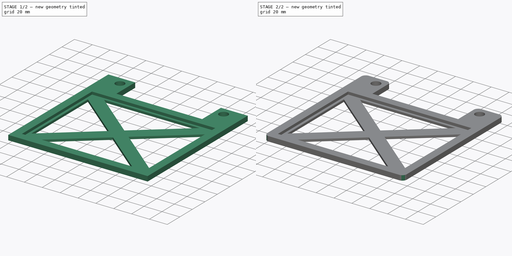
[diagram: build sequence overview — one tinted view per stage of 2, left to right]
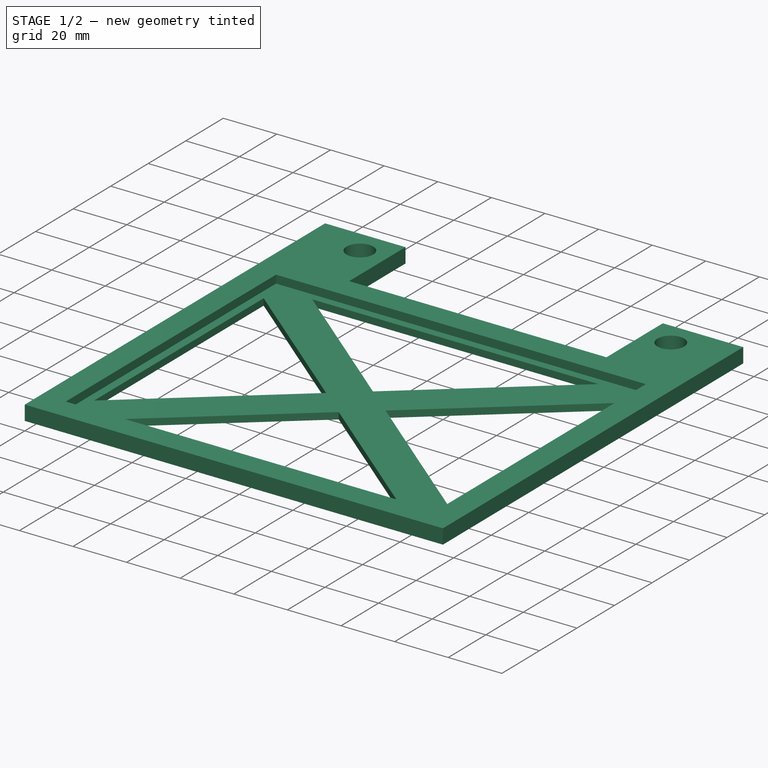
[diagram: stage 1 of 2 — iso view after this stage's code; geometry added in this stage tinted green]
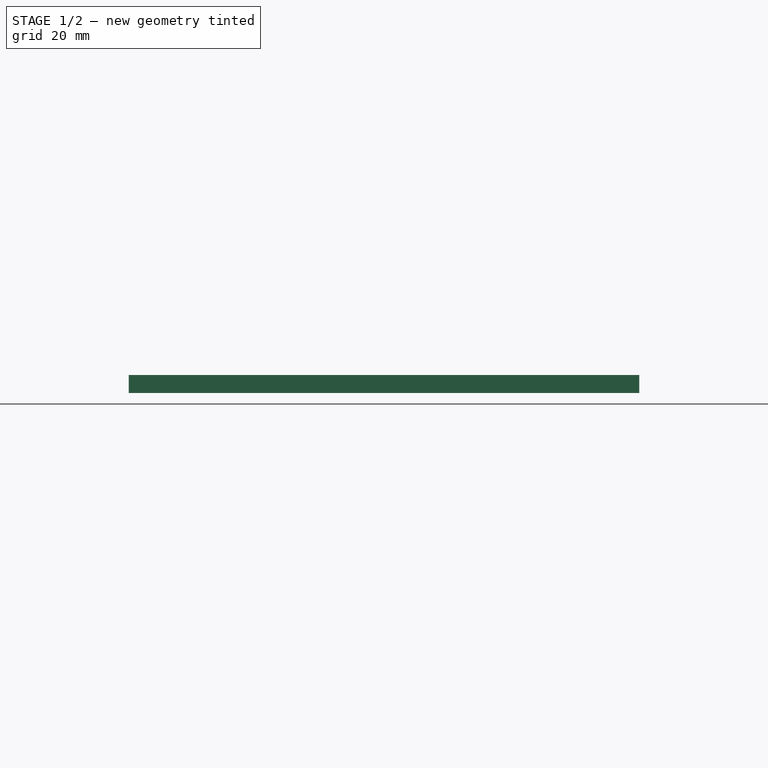
[diagram: stage 1 of 2 — front view after this stage's code; geometry added in this stage tinted green]
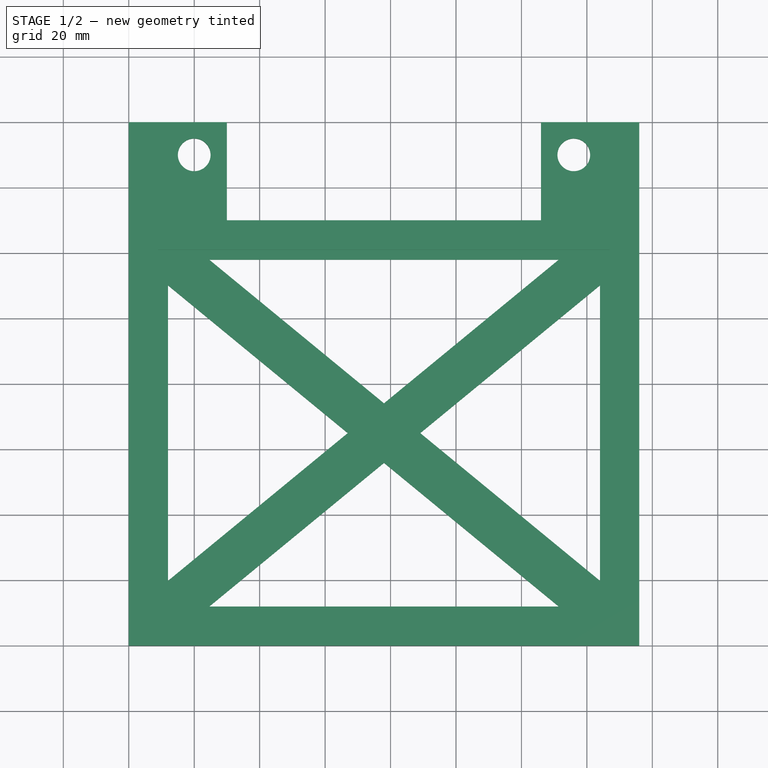
[diagram: stage 1 of 2 — top view after this stage's code; geometry added in this stage tinted green]
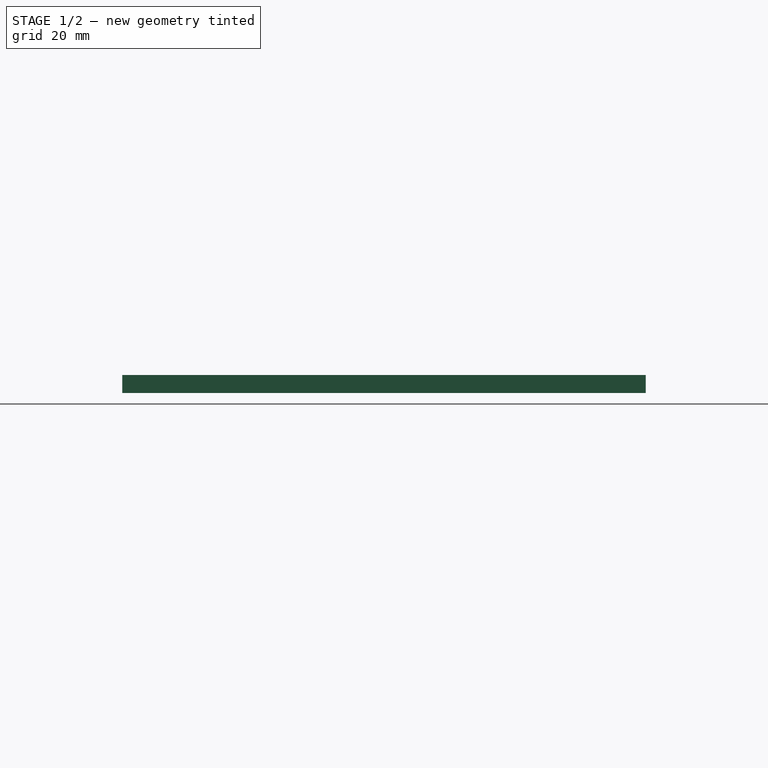
[diagram: stage 1 of 2 — right view after this stage's code; geometry added in this stage tinted green]
FCSTD DOCUMENT  (FreeCAD 0.19R24291 (Git))
Label: Indoor_unit_solar
License: All rights reserved
LicenseURL: http://en.wikipedia.org/wiki/All_rights_reserved
objects: Sketcher::SketchObject×2, PartDesign::Pad×1, PartDesign::Pocket×1, PartDesign::Fillet×1, PartDesign::Body×1
note: 9 computed .brp shape members not serialized (recipe doc carries the construction recipe); baked Part::Feature solids carry a one-line shape summary decoded from their .brp

FEATURE [Sketcher::SketchObject] Sketch
  FullyConstrained = true
  MapMode = 5
  Support = -> [XY_Plane]
  sketch-geometry (47):
    g0: LineSegment StartX=0 StartY=0 StartZ=0 EndX=0 EndY=160 EndZ=0
    g1: LineSegment StartX=30 StartY=130 StartZ=0 EndX=126 EndY=130 EndZ=0
    g2: LineSegment StartX=156 StartY=160 StartZ=0 EndX=156 EndY=0 EndZ=0
    g3: LineSegment StartX=156 StartY=0 StartZ=0 EndX=0 EndY=0 EndZ=0
    g4: LineSegment StartX=12 StartY=110.137 StartZ=0 EndX=12 EndY=19.863 EndZ=0
    g5: LineSegment StartX=24.6 StartY=12 StartZ=0 EndX=131.4 EndY=12 EndZ=0
    g6: LineSegment StartX=144 StartY=19.863 StartZ=0 EndX=144 EndY=110.137 EndZ=0
    g7: LineSegment StartX=24.6 StartY=118 StartZ=0 EndX=131.4 EndY=118 EndZ=0
    g8: LineSegment StartX=24.6 StartY=118 StartZ=0 EndX=78 EndY=74.1096 EndZ=0
    g9: LineSegment StartX=78 StartY=74.1096 StartZ=0 EndX=131.4 EndY=118 EndZ=0
    g10: LineSegment StartX=144 StartY=110.137 StartZ=0 EndX=89.0833 EndY=65 EndZ=0
    g11: LineSegment StartX=89.0833 StartY=65 StartZ=0 EndX=144 EndY=19.863 EndZ=0
    g12: LineSegment StartX=12 StartY=110.137 StartZ=0 EndX=66.9167 EndY=65 EndZ=0
    g13: LineSegment StartX=12 StartY=19.863 StartZ=0 EndX=66.9167 EndY=65 EndZ=0
    g14: LineSegment StartX=24.6 StartY=12 StartZ=0 EndX=78 EndY=55.8904 EndZ=0
    g15: LineSegment StartX=78 StartY=55.8904 StartZ=0 EndX=131.4 EndY=12 EndZ=0
    g16: LineSegment StartX=0 StartY=160 StartZ=0 EndX=30 EndY=160 EndZ=0
    g17: LineSegment StartX=30 StartY=160 StartZ=0 EndX=30 EndY=130 EndZ=0
    g18: LineSegment StartX=126 StartY=130 StartZ=0 EndX=126 EndY=160 EndZ=0
    g19: LineSegment StartX=126 StartY=160 StartZ=0 EndX=156 EndY=160 EndZ=0
    g20: LineSegment StartX=0 StartY=0 StartZ=0 EndX=156 EndY=0 EndZ=0
    g21: LineSegment StartX=156 StartY=0 StartZ=0 EndX=156 EndY=160 EndZ=0
    g22: LineSegment StartX=156 StartY=160 StartZ=0 EndX=0 EndY=160 EndZ=0
    g23: LineSegment StartX=0 StartY=160 StartZ=0 EndX=0 EndY=0 EndZ=0
    g24: LineSegment StartX=0 StartY=0 StartZ=0 EndX=156 EndY=0 EndZ=0
    g25: LineSegment StartX=156 StartY=0 StartZ=0 EndX=156 EndY=130 EndZ=0
    g26: LineSegment StartX=156 StartY=130 StartZ=0 EndX=0 EndY=130 EndZ=0
    g27: LineSegment StartX=0 StartY=130 StartZ=0 EndX=0 EndY=0 EndZ=0
    g28: LineSegment StartX=0 StartY=10 StartZ=0 EndX=146 EndY=130 EndZ=0
    g29: LineSegment StartX=10 StartY=0 StartZ=0 EndX=156 EndY=120 EndZ=0
    g30: LineSegment StartX=10 StartY=130 StartZ=0 EndX=156 EndY=10 EndZ=0
    g31: LineSegment StartX=0 StartY=120 StartZ=0 EndX=146 EndY=1.42e-14 EndZ=0
    g32: LineSegment StartX=0 StartY=0 StartZ=0 EndX=0 EndY=10 EndZ=0
    g33: LineSegment StartX=0 StartY=0 StartZ=0 EndX=10 EndY=0 EndZ=0
    g34: LineSegment StartX=146 StartY=0 StartZ=0 EndX=156 EndY=0 EndZ=0
    g35: LineSegment StartX=156 StartY=10 StartZ=0 EndX=156 EndY=0 EndZ=0
    g36: LineSegment StartX=156 StartY=130 StartZ=0 EndX=156 EndY=120 EndZ=0
    g37: LineSegment StartX=146 StartY=130 StartZ=0 EndX=156 EndY=130 EndZ=0
    g38: LineSegment StartX=10 StartY=130 StartZ=0 EndX=0 EndY=130 EndZ=0
    g39: LineSegment StartX=0 StartY=130 StartZ=0 EndX=0 EndY=120 EndZ=0
    g40: LineSegment StartX=12 StartY=118 StartZ=0 EndX=144 EndY=118 EndZ=0
    g41: LineSegment StartX=144 StartY=118 StartZ=0 EndX=144 EndY=12 EndZ=0
    g42: LineSegment StartX=144 StartY=12 StartZ=0 EndX=12 EndY=12 EndZ=0
    g43: LineSegment StartX=12 StartY=12 StartZ=0 EndX=12 EndY=118 EndZ=0
    g44: Circle CenterX=20 CenterY=150 CenterZ=0 NormalX=0 NormalY=0 NormalZ=1 AngleXU=0 Radius=5
    g45: Circle CenterX=136 CenterY=150 CenterZ=0 NormalX=0 NormalY=0 NormalZ=1 AngleXU=0 Radius=5
    g46: LineSegment StartX=20 StartY=150 StartZ=0 EndX=136 EndY=150 EndZ=0
  constraints (131):
    c: Coincident(g0,g-1)
    c: PointOnObject(g0,g-2)
    c: Horizontal(g1)
    c: PointOnObject(g2,g-1)
    c: Vertical(g2)
    c: Coincident(g3,g2)
    c: Coincident(g3,g0)
    c: Vertical(g4)
    c: Horizontal(g5)
    c: Vertical(g6)
    c: Horizontal(g7)
    c: Coincident(g8,g7)
    c: Coincident(g9,g8)
    c: Coincident(g9,g7)
    c: Coincident(g10,g6)
    c: Coincident(g11,g10)
    c: Coincident(g11,g6)
    c: Coincident(g12,g4)
    c: Coincident(g13,g4)
    c: Coincident(g13,g12)
    c: Coincident(g15,g14)
    c: Coincident(g15,g5)
    c: Coincident(g16,g0)
    c: Horizontal(g16)
    c: Coincident(g17,g16)
    c: Coincident(g17,g1)
    c: Vertical(g17)
    c: Coincident(g18,g1)
    c: Vertical(g18)
    c: Coincident(g19,g18)
    c: Coincident(g19,g2)
    c: Horizontal(g19)
    c: Coincident(g14,g5)
    c: Coincident(g20,g21)
    c: Coincident(g21,g22)
    c: Coincident(g22,g23)
    c: Coincident(g23,g20)
    c: Horizontal(g20)
    c: Horizontal(g22)
    c: Vertical(g21)
    c: Coincident(g20,g0)
    c: Coincident(g21,g2)
    c: Coincident(g24,g25)
    c: Coincident(g25,g26)
    c: Coincident(g26,g27)
    c: Coincident(g27,g24)
    c: Horizontal(g24)
    c: Horizontal(g26)
    c: Vertical(g25)
    c: Vertical(g27)
    c: Coincident(g24,g0)
    c: PointOnObject(g25,g2)
    c: PointOnObject(g1,g26)
    c: Coincident(g0,g22)
    c: PointOnObject(g28,g0)
    c: PointOnObject(g28,g26)
    c: PointOnObject(g29,g3)
    c: PointOnObject(g29,g2)
    c: PointOnObject(g30,g26)
    c: PointOnObject(g30,g2)
    c: PointOnObject(g31,g0)
    c: PointOnObject(g31,g3)
    c: Parallel(g28,g29)
    c: Parallel(g31,g30)
    c: DistanceY(g0,g28) = 10
    c: Coincident(g32,g0)
    c: Coincident(g32,g28)
    c: Coincident(g33,g0)
    c: Coincident(g33,g29)
    c: Coincident(g34,g31)
    c: Coincident(g34,g2)
    c: Coincident(g35,g30)
    c: Coincident(g35,g2)
    c: Coincident(g36,g25)
    c: Coincident(g36,g29)
    c: Coincident(g37,g28)
    c: Coincident(g37,g25)
    c: Coincident(g38,g30)
    c: Coincident(g38,g26)
    c: Coincident(g39,g26)
    c: Coincident(g39,g31)
    c: Equal(g32,g33)
    c: Equal(g33,g34)
    c: Equal(g34,g35)
    c: Equal(g35,g36)
    c: Equal(g37,g38)
    c: PointOnObject(g7,g30)
    c: PointOnObject(g8,g30)
    c: PointOnObject(g4,g31)
    c: PointOnObject(g12,g31)
    c: PointOnObject(g4,g28)
    c: PointOnObject(g12,g28)
    c: PointOnObject(g5,g29)
    c: PointOnObject(g14,g29)
    c: PointOnObject(g14,g31)
    c: PointOnObject(g5,g31)
    c: PointOnObject(g10,g30)
    c: PointOnObject(g6,g30)
    c: PointOnObject(g6,g29)
    c: PointOnObject(g10,g29)
    c: PointOnObject(g8,g28)
    c: PointOnObject(g7,g28)
    c: Coincident(g40,g41)
    c: Coincident(g41,g42)
    c: Coincident(g42,g43)
    c: Coincident(g43,g40)
    c: Horizontal(g40)
    c: Horizontal(g42)
    c: Vertical(g41)
    c: Vertical(g43)
    c: PointOnObject(g4,g43)
    c: PointOnObject(g7,g40)
    c: PointOnObject(g6,g41)
    c: PointOnObject(g5,g42)
    c: DistanceX(g42,g42) = 132
    c: DistanceY(g43,g43) = 106
    c: DistanceX(g0,g4) = 12
    c: DistanceY(g0,g5) = 12
    c: DistanceX(g3,g3) = 156
    c: DistanceY(g2,g1) = 130
    c: DistanceX(g16,g16) = 30
    c: Equal(g45,g44)
    c: DistanceX(g0,g44) = 20
    c: DistanceX(g45,g2) = 20
    c: Coincident(g46,g44)
    c: Coincident(g46,g45)
    c: Horizontal(g46)
    c: DistanceY(g0,g44) = 150
    c: Radius(g44) = 5
    c: Equal(g16,g19)
    c: DistanceY(g17,g17) = 30
FEATURE [PartDesign::Pad] Pad
  Direction = (1,1,1)
  Length = 5.5
  Length2 = 100
  Profile = -> Sketch
  Type = 0
FEATURE [Sketcher::SketchObject] Sketch001
  FullyConstrained = true
  MapMode = 5
  Placement = pos=(0,0,5.5) rot=(0,0,1;0rad)
  Support = -> [Pad]
  sketch-geometry (4):
    g0: LineSegment StartX=9 StartY=121 StartZ=0 EndX=147 EndY=121 EndZ=0
    g1: LineSegment StartX=147 StartY=121 StartZ=0 EndX=147 EndY=9 EndZ=0
    g2: LineSegment StartX=147 StartY=9 StartZ=0 EndX=9 EndY=9 EndZ=0
    g3: LineSegment StartX=9 StartY=9 StartZ=0 EndX=9 EndY=121 EndZ=0
  constraints (12):
    c: Coincident(g0,g1)
    c: Coincident(g1,g2)
    c: Coincident(g2,g3)
    c: Coincident(g3,g0)
    c: Horizontal(g0)
    c: Horizontal(g2)
    c: Vertical(g1)
    c: Vertical(g3)
    c: DistanceY(g-1,g2) = 9
    c: DistanceX(g-1,g2) = 9
    c: DistanceX(g2,g2) = 138
    c: DistanceY(g3,g3) = 112
FEATURE [PartDesign::Pocket] Pocket
  BaseFeature = -> Pad
  Length = 3
  Length2 = 100
  Profile = -> Sketch001
  Type = 0
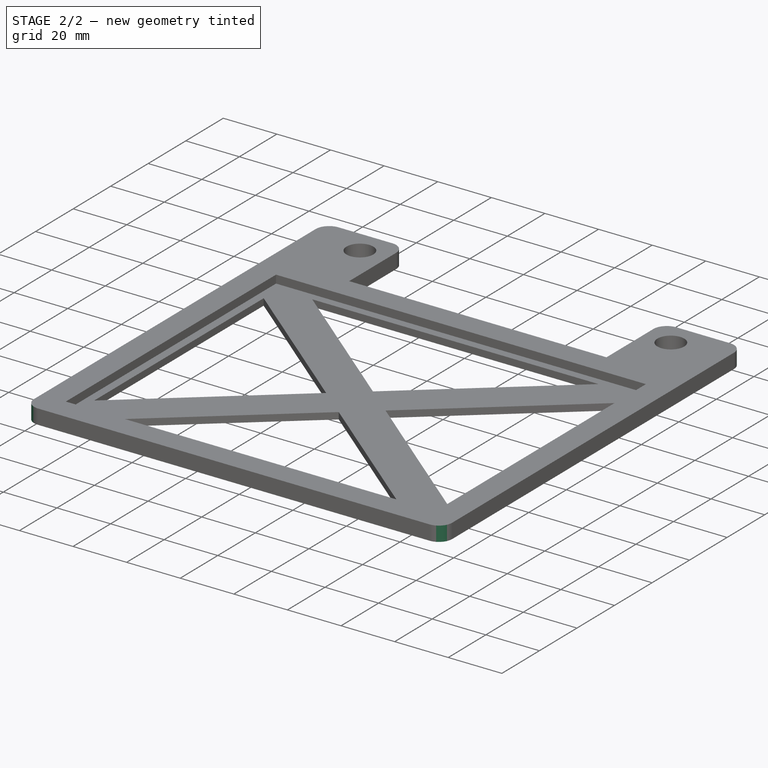
[diagram: stage 2 of 2 — iso view after this stage's code; geometry added in this stage tinted green]
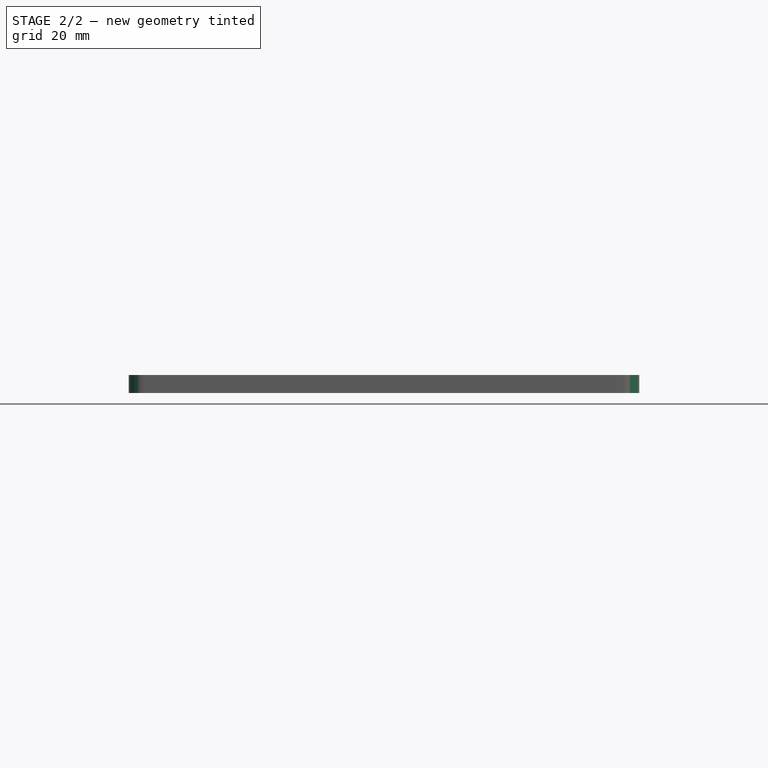
[diagram: stage 2 of 2 — front view after this stage's code; geometry added in this stage tinted green]
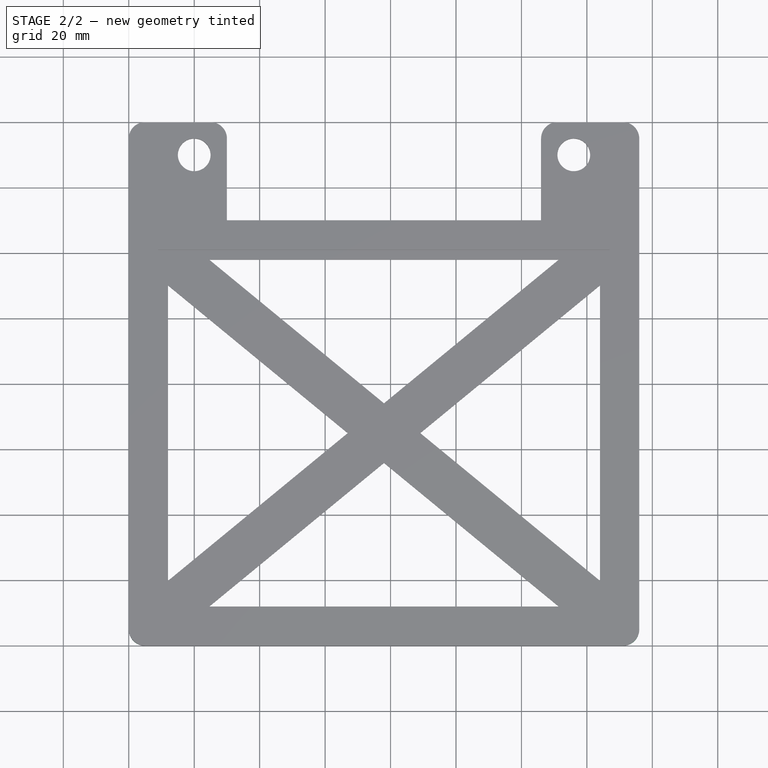
[diagram: stage 2 of 2 — top view after this stage's code; geometry added in this stage tinted green]
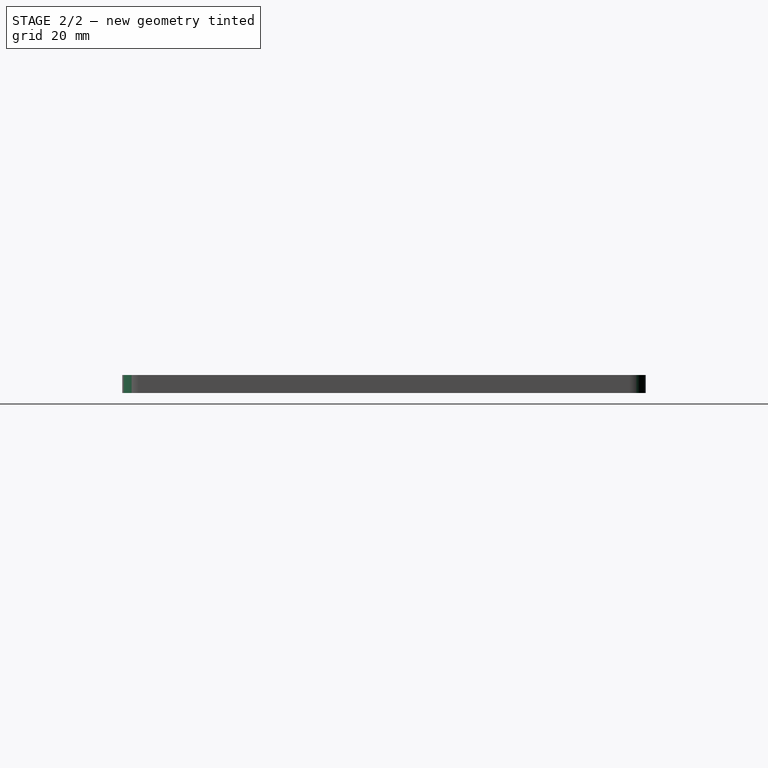
[diagram: stage 2 of 2 — right view after this stage's code; geometry added in this stage tinted green]
FEATURE [PartDesign::Fillet] Fillet
  Base = -> Pocket [Edge1,Edge5,Edge41,Edge44,Edge8,Edge2]
  BaseFeature = -> Pocket
  Radius = 5
  SupportTransform = false
FEATURE [PartDesign::Body] Body
  Group = -> [Sketch,Pad,Sketch001,Pocket,Fillet]
  Origin = -> Origin
  Tip = -> Fillet
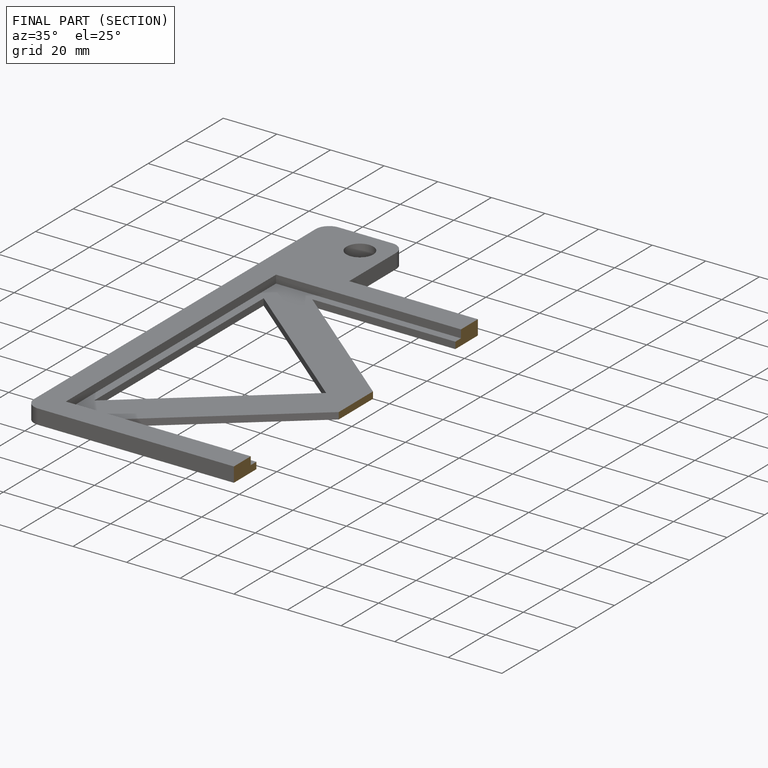
[diagram: finished part — half-section view (interior)]
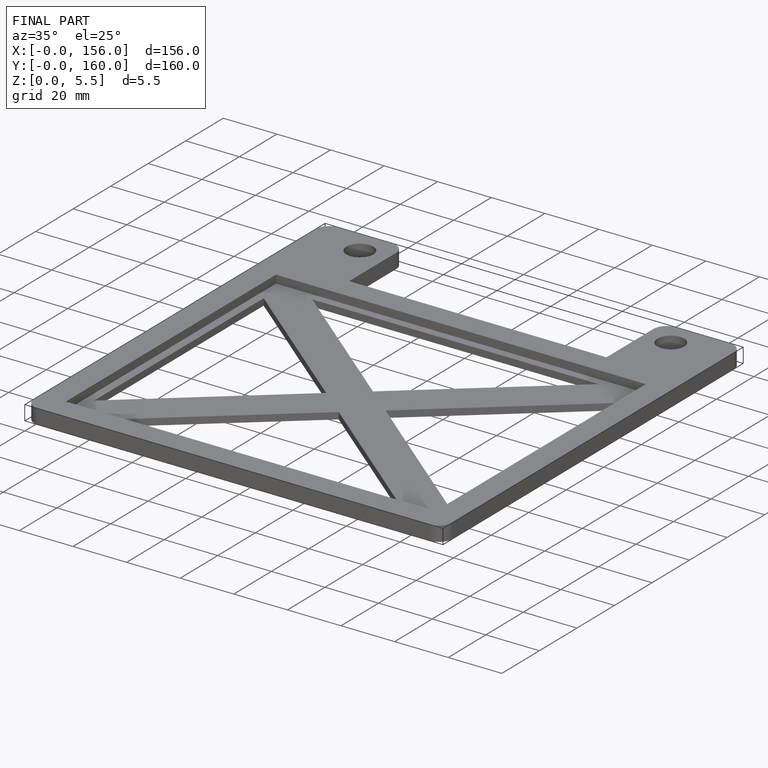
[diagram: finished part — iso view with bounding-box wireframe]
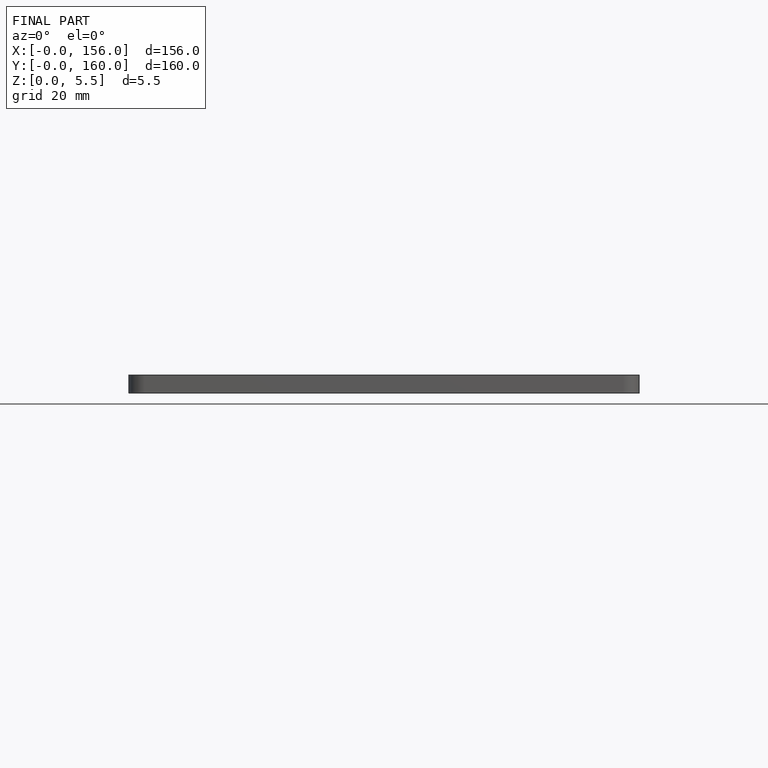
[diagram: finished part — front view with bounding-box wireframe]
